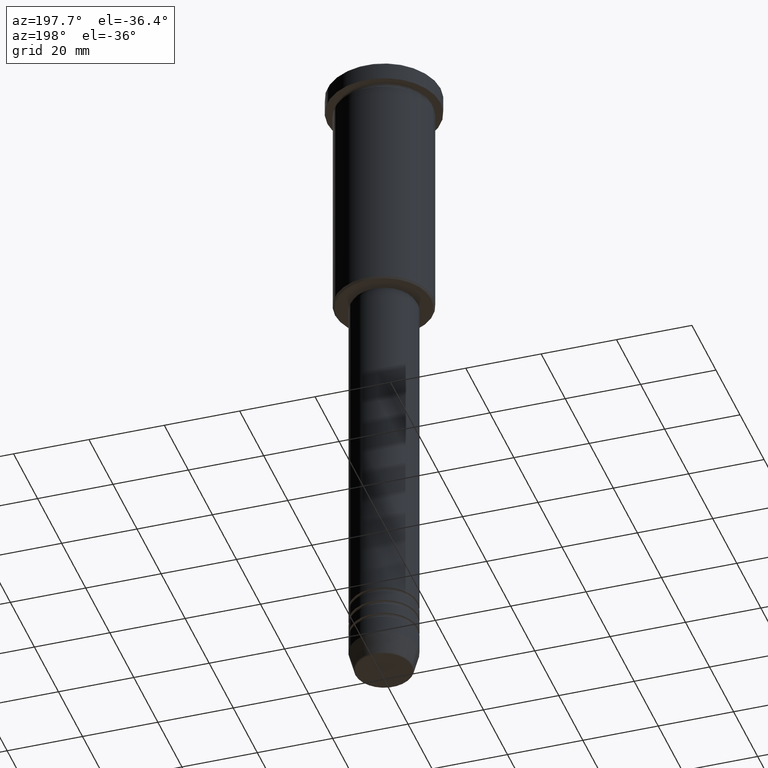
[diagram: clean part render]
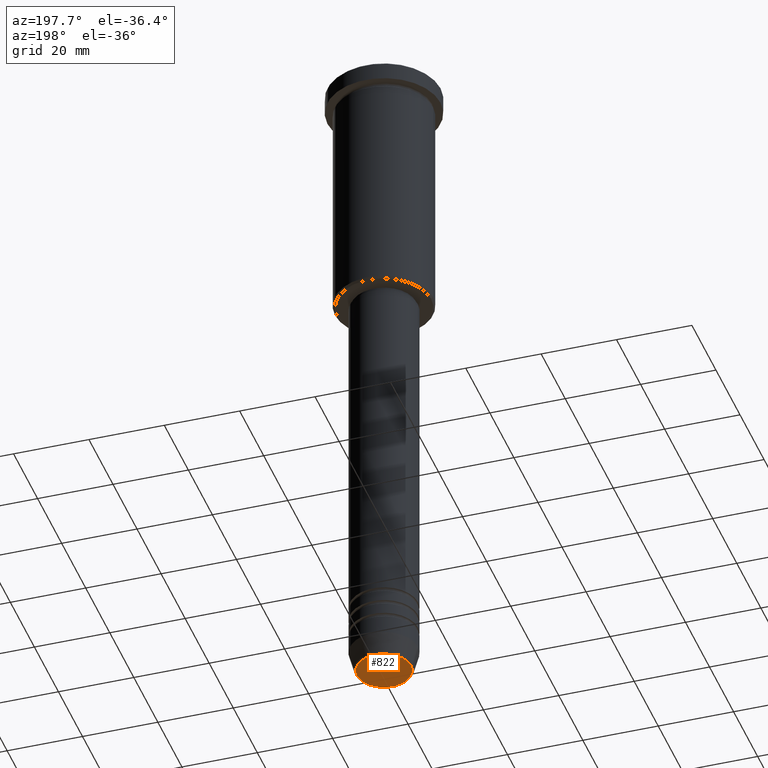
[diagram: same view with one face highlighted and labeled with its STEP entity id]
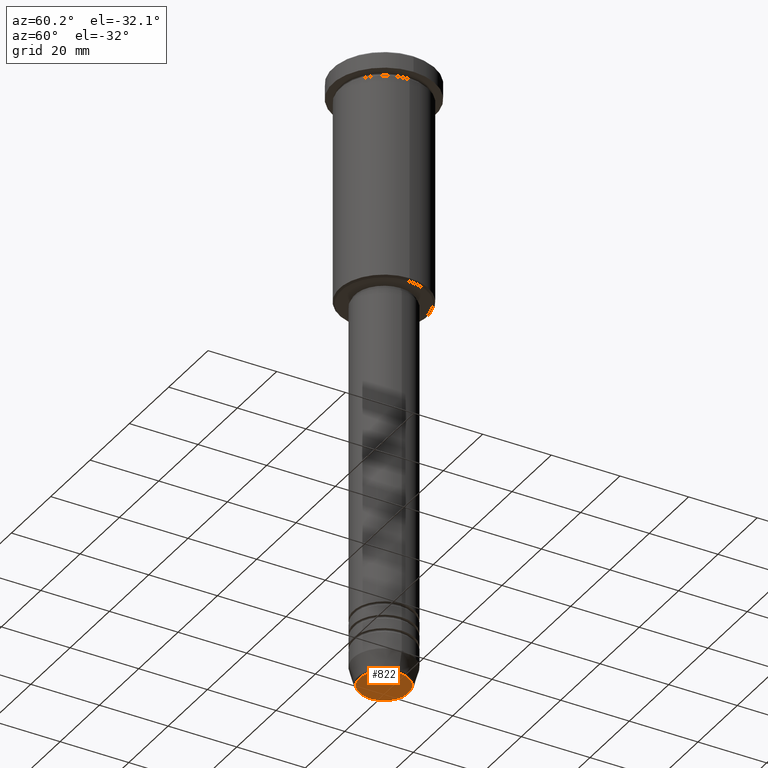
[diagram: same view with one face highlighted and labeled with its STEP entity id]
A machine part, auxiliary view. The second image highlights one B-rep face of the part: STEP entity #822.
A second angle (auxiliary view) of the same face is appended — the face is thin or edge-on in the first view.
In plain terms, the highlighted planar face has unit normal (0, -0, 1).
Its self-contained STEP definition (entity closure, byte-faithful):
#22 = AXIS2_PLACEMENT_3D ( 'NONE', #953, #33, #321 ) ;
#33 = DIRECTION ( 'NONE',  ( 0.000000000000000000, -0.000000000000000000, 1.000000000000000000 ) ) ;
#53 = PLANE ( 'NONE',  #22 ) ;
#65 = VERTEX_POINT ( 'NONE', #336 ) ;
#100 = CIRCLE ( 'NONE', #1071, 7.142615947639352036 ) ;
#111 = EDGE_CURVE ( 'NONE', #65, #671, #887, .T. ) ;
#271 = CARTESIAN_POINT ( 'NONE',  ( 7.142615947639352036, 0.000000000000000000, -180.0000000000000000 ) ) ;
#321 = DIRECTION ( 'NONE',  ( 1.000000000000000000, 0.000000000000000000, 0.000000000000000000 ) ) ;
#324 = CARTESIAN_POINT ( 'NONE',  ( 0.000000000000000000, 0.000000000000000000, -180.0000000000000000 ) ) ;
#336 = CARTESIAN_POINT ( 'NONE',  ( -7.142615947639352036, 9.042911250660041322E-16, -180.0000000000000000 ) ) ;
#346 = ORIENTED_EDGE ( 'NONE', *, *, #111, .T. ) ;
#430 = EDGE_LOOP ( 'NONE', ( #1064, #346 ) ) ;
#564 = AXIS2_PLACEMENT_3D ( 'NONE', #324, #1160, #691 ) ;
#671 = VERTEX_POINT ( 'NONE', #271 ) ;
#688 = DIRECTION ( 'NONE',  ( 0.000000000000000000, 0.000000000000000000, -1.000000000000000000 ) ) ;
#691 = DIRECTION ( 'NONE',  ( 1.000000000000000000, 0.000000000000000000, 0.000000000000000000 ) ) ;
#764 = CARTESIAN_POINT ( 'NONE',  ( 0.000000000000000000, 0.000000000000000000, -180.0000000000000000 ) ) ;
#787 = EDGE_CURVE ( 'NONE', #671, #65, #100, .T. ) ;
#822 = ADVANCED_FACE ( 'NONE', ( #845 ), #53, .F. ) ;
#845 = FACE_OUTER_BOUND ( 'NONE', #430, .T. ) ;
#887 = CIRCLE ( 'NONE', #564, 7.142615947639352036 ) ;
#953 = CARTESIAN_POINT ( 'NONE',  ( 0.000000000000000000, 0.000000000000000000, -180.0000000000000000 ) ) ;
#1064 = ORIENTED_EDGE ( 'NONE', *, *, #787, .T. ) ;
#1071 = AXIS2_PLACEMENT_3D ( 'NONE', #764, #688, #1132 ) ;
#1132 = DIRECTION ( 'NONE',  ( 1.000000000000000000, 0.000000000000000000, 0.000000000000000000 ) ) ;
#1160 = DIRECTION ( 'NONE',  ( 0.000000000000000000, 0.000000000000000000, -1.000000000000000000 ) ) ;